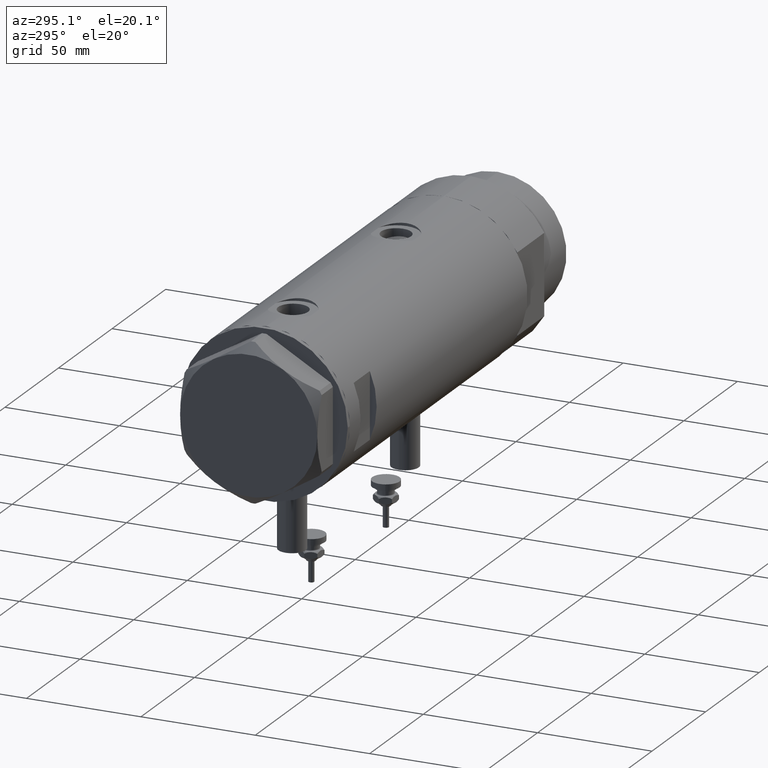
[diagram: clean part render]
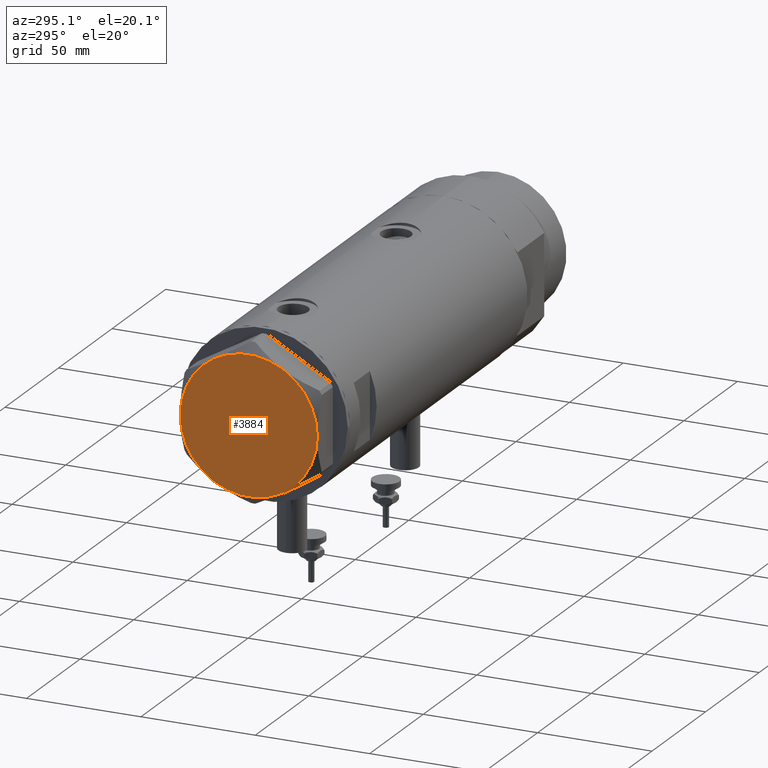
[diagram: same view with one face highlighted and labeled with its STEP entity id]
A machine part, auxiliary view. The second image highlights one B-rep face of the part: STEP entity #3884.
In plain terms, the highlighted planar face has unit normal (-1, -0, 0).
Its self-contained STEP definition (entity closure, byte-faithful):
#23 = DIRECTION ( 'NONE',  ( 1.000000000000000000, 0.000000000000000000, 0.000000000000000000 ) ) ;
#145 = CARTESIAN_POINT ( 'NONE',  ( 30.00000000000000000, 9.013887592422954582E-15, 14.50000000000000000 ) ) ;
#187 = EDGE_CURVE ( 'NONE', #2311, #3784, #1336, .T. ) ;
#322 = CIRCLE ( 'NONE', #616, 30.00000000000000000 ) ;
#337 = VERTEX_POINT ( 'NONE', #3806 ) ;
#468 = CARTESIAN_POINT ( 'NONE',  ( 0.000000000000000000, 0.000000000000000000, 14.50000000000000000 ) ) ;
#512 = DIRECTION ( 'NONE',  ( 0.000000000000000000, 0.000000000000000000, 1.000000000000000000 ) ) ;
#616 = AXIS2_PLACEMENT_3D ( 'NONE', #4183, #512, #5534 ) ;
#708 = CIRCLE ( 'NONE', #4041, 30.00000000000000000 ) ;
#748 = CARTESIAN_POINT ( 'NONE',  ( 0.000000000000000000, 0.000000000000000000, 14.50000000000000000 ) ) ;
#783 = DIRECTION ( 'NONE',  ( 0.000000000000000000, 0.000000000000000000, 1.000000000000000000 ) ) ;
#875 = DIRECTION ( 'NONE',  ( 0.000000000000000000, 0.000000000000000000, 1.000000000000000000 ) ) ;
#891 = DIRECTION ( 'NONE',  ( 1.000000000000000000, 0.000000000000000000, 0.000000000000000000 ) ) ;
#1040 = EDGE_LOOP ( 'NONE', ( #3663, #2079, #3759, #3902, #2782, #1968 ) ) ;
#1072 = CARTESIAN_POINT ( 'NONE',  ( 14.99999999999998757, -25.98076211353316722, 14.50000000000000000 ) ) ;
#1146 = CARTESIAN_POINT ( 'NONE',  ( 0.000000000000000000, 0.000000000000000000, 14.50000000000000000 ) ) ;
#1336 = CIRCLE ( 'NONE', #3455, 30.00000000000000000 ) ;
#1666 = DIRECTION ( 'NONE',  ( 0.000000000000000000, 0.000000000000000000, 1.000000000000000000 ) ) ;
#1676 = CIRCLE ( 'NONE', #5793, 30.00000000000000000 ) ;
#1745 = CIRCLE ( 'NONE', #5097, 30.00000000000000000 ) ;
#1791 = DIRECTION ( 'NONE',  ( 0.000000000000000000, 0.000000000000000000, 1.000000000000000000 ) ) ;
#1806 = VERTEX_POINT ( 'NONE', #2880 ) ;
#1968 = ORIENTED_EDGE ( 'NONE', *, *, #5181, .T. ) ;
#2079 = ORIENTED_EDGE ( 'NONE', *, *, #2307, .T. ) ;
#2307 = EDGE_CURVE ( 'NONE', #4567, #2311, #4021, .T. ) ;
#2311 = VERTEX_POINT ( 'NONE', #3680 ) ;
#2782 = ORIENTED_EDGE ( 'NONE', *, *, #4745, .T. ) ;
#2880 = CARTESIAN_POINT ( 'NONE',  ( -30.00000000000000000, 0.000000000000000000, 14.50000000000000000 ) ) ;
#2958 = EDGE_CURVE ( 'NONE', #3784, #1806, #1745, .T. ) ;
#2976 = DIRECTION ( 'NONE',  ( 1.000000000000000000, 0.000000000000000000, -0.000000000000000000 ) ) ;
#3096 = DIRECTION ( 'NONE',  ( 1.000000000000000000, 0.000000000000000000, 0.000000000000000000 ) ) ;
#3455 = AXIS2_PLACEMENT_3D ( 'NONE', #5029, #4544, #3563 ) ;
#3523 = PLANE ( 'NONE',  #5105 ) ;
#3563 = DIRECTION ( 'NONE',  ( 1.000000000000000000, 0.000000000000000000, 0.000000000000000000 ) ) ;
#3663 = ORIENTED_EDGE ( 'NONE', *, *, #5431, .T. ) ;
#3680 = CARTESIAN_POINT ( 'NONE',  ( 14.99999999999999467, 25.98076211353316367, 14.50000000000000000 ) ) ;
#3759 = ORIENTED_EDGE ( 'NONE', *, *, #187, .T. ) ;
#3784 = VERTEX_POINT ( 'NONE', #4729 ) ;
#3806 = CARTESIAN_POINT ( 'NONE',  ( -14.99999999999999645, -25.98076211353316367, 14.50000000000000000 ) ) ;
#3884 = ADVANCED_FACE ( 'NONE', ( #5281 ), #3523, .T. ) ;
#3902 = ORIENTED_EDGE ( 'NONE', *, *, #2958, .T. ) ;
#4021 = CIRCLE ( 'NONE', #4609, 30.00000000000000000 ) ;
#4041 = AXIS2_PLACEMENT_3D ( 'NONE', #5869, #1791, #891 ) ;
#4183 = CARTESIAN_POINT ( 'NONE',  ( 0.000000000000000000, 0.000000000000000000, 14.50000000000000000 ) ) ;
#4544 = DIRECTION ( 'NONE',  ( 0.000000000000000000, 0.000000000000000000, 1.000000000000000000 ) ) ;
#4567 = VERTEX_POINT ( 'NONE', #145 ) ;
#4609 = AXIS2_PLACEMENT_3D ( 'NONE', #468, #5525, #23 ) ;
#4729 = CARTESIAN_POINT ( 'NONE',  ( -14.99999999999999645, 25.98076211353316367, 14.50000000000000000 ) ) ;
#4745 = EDGE_CURVE ( 'NONE', #1806, #337, #708, .T. ) ;
#4867 = CARTESIAN_POINT ( 'NONE',  ( 0.000000000000000000, 0.000000000000000000, 14.50000000000000000 ) ) ;
#5029 = CARTESIAN_POINT ( 'NONE',  ( 0.000000000000000000, 0.000000000000000000, 14.50000000000000000 ) ) ;
#5097 = AXIS2_PLACEMENT_3D ( 'NONE', #748, #875, #3096 ) ;
#5105 = AXIS2_PLACEMENT_3D ( 'NONE', #1146, #783, #2976 ) ;
#5145 = VERTEX_POINT ( 'NONE', #1072 ) ;
#5181 = EDGE_CURVE ( 'NONE', #337, #5145, #1676, .T. ) ;
#5281 = FACE_OUTER_BOUND ( 'NONE', #1040, .T. ) ;
#5431 = EDGE_CURVE ( 'NONE', #5145, #4567, #322, .T. ) ;
#5525 = DIRECTION ( 'NONE',  ( 0.000000000000000000, 0.000000000000000000, 1.000000000000000000 ) ) ;
#5534 = DIRECTION ( 'NONE',  ( 1.000000000000000000, 0.000000000000000000, 0.000000000000000000 ) ) ;
#5772 = DIRECTION ( 'NONE',  ( 1.000000000000000000, 0.000000000000000000, 0.000000000000000000 ) ) ;
#5793 = AXIS2_PLACEMENT_3D ( 'NONE', #4867, #1666, #5772 ) ;
#5869 = CARTESIAN_POINT ( 'NONE',  ( 0.000000000000000000, 0.000000000000000000, 14.50000000000000000 ) ) ;